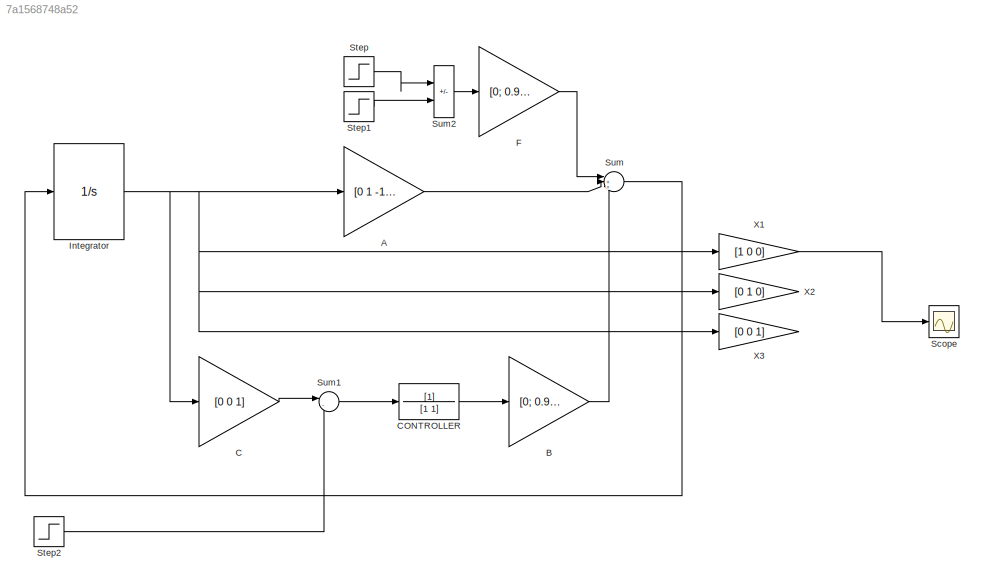
MODEL slx_7a1568748a52
KIND model
CONFIG AbsTol = auto
CONFIG EnableMultiTasking = off
CONFIG FixedStep = auto
CONFIG MaxStep = auto
CONFIG MinStep = auto
CONFIG RelTol = 1e-3
CONFIG SampleTimeConstraint = Unconstrained
CONFIG SolverName = VariableStepAuto
CONFIG StartTime = 0.0
CONFIG StopTime = 10.0
BLOCK [Gain] A
  Gain = [0 1 -1; -0.9 -0.09 0.09; 0.1 0.01 -0.01;]
  Multiplication = Matrix(K*u)
BLOCK [Gain] B
  Gain = [0; 0.9; 0;]
  Multiplication = Matrix(K*u)
BLOCK [Gain] C
  Gain = [0 0 1]
  Multiplication = Matrix(K*u)
BLOCK [TransferFcn] CONTROLLER
  Denominator = [1 1]
BLOCK [Gain] F
  Gain = [0; 0.9; 0;]
  Multiplication = Matrix(K*u)
BLOCK [Integrator] Integrator
  Ports = [1, 1]
BLOCK [Scope] Scope
  Floating = off
  NumInputPorts = 1
  Ports = [1]
  ScopeSpecificationString = Simulink.scopes.TimeScopeBlockCfg('CurrentConfiguration', extmgr.ConfigurationSet(extmgr.Configuration('Core','General UI',true),extmgr.Configuration('Core','Source UI',true),extmgr.Configuration('Sources','WiredSimulink',true),extmgr.Configuration('Visuals','Time Domain',true,'SerializedDisplays',{struct('MinYLimReal','-0.22284','MaxYLimReal','1.54098','YLabelReal','','MinYLimMag','0.00000','MaxY...<+1322ch>
BLOCK [Step] Step
  SampleTime = 0
  Time = 20
BLOCK [Step] Step1
  SampleTime = 0
  Time = 22
BLOCK [Step] Step2
  SampleTime = 0
  Time = 0
BLOCK [Sum] Sum
  Inputs = |+++
  Ports = [3, 1]
BLOCK [Sum] Sum1
  Inputs = |-+
  Ports = [2, 1]
BLOCK [Sum] Sum2
  IconShape = rectangular
  Inputs = |+-
  Ports = [2, 1]
BLOCK [Gain] X1
  Gain = [1 0 0]
  Multiplication = Matrix(K*u)
BLOCK [Gain] X2
  Gain = [0 1 0]
  Multiplication = Matrix(K*u)
BLOCK [Gain] X3
  Gain = [0 0 1]
  Multiplication = Matrix(K*u)
LINE A:1 -> Sum:2
LINE B:1 -> Sum:3
LINE C:1 -> Sum1:1
LINE CONTROLLER:1 -> B:1
LINE F:1 -> Sum:1
NET Integrator:1 -> A:1, C:1, X1:1, X2:1, X3:1
LINE Step1:1 -> Sum2:2
LINE Step2:1 -> Sum1:2
LINE Step:1 -> Sum2:1
LINE Sum1:1 -> CONTROLLER:1
LINE Sum2:1 -> F:1
LINE Sum:1 -> Integrator:1
LINE X1:1 -> Scope:1
note: NET lines group one-source signal fan-out (src -> all destinations, sorted); 1:1 wires keep LINE
